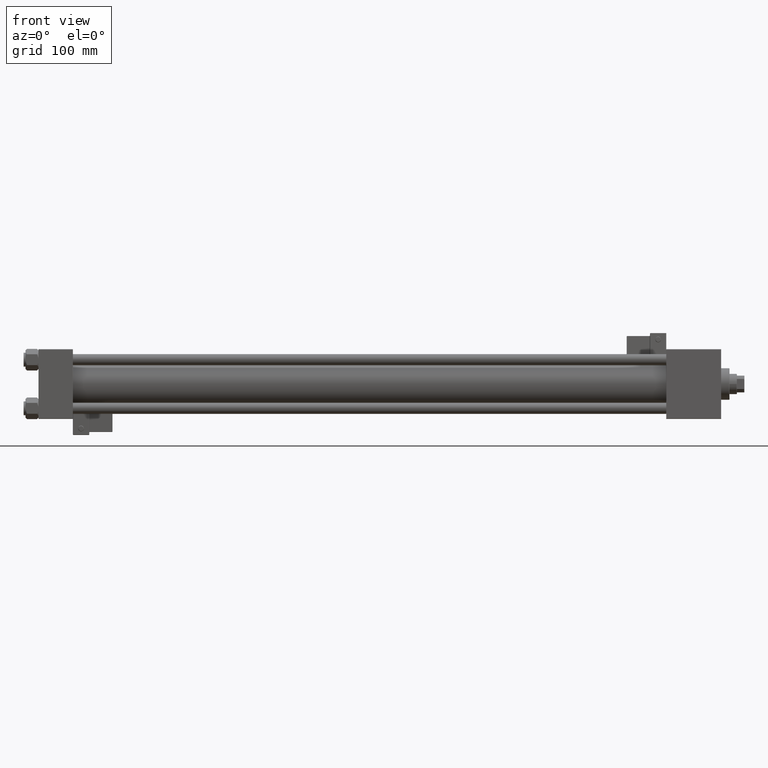
[diagram: clean part render]
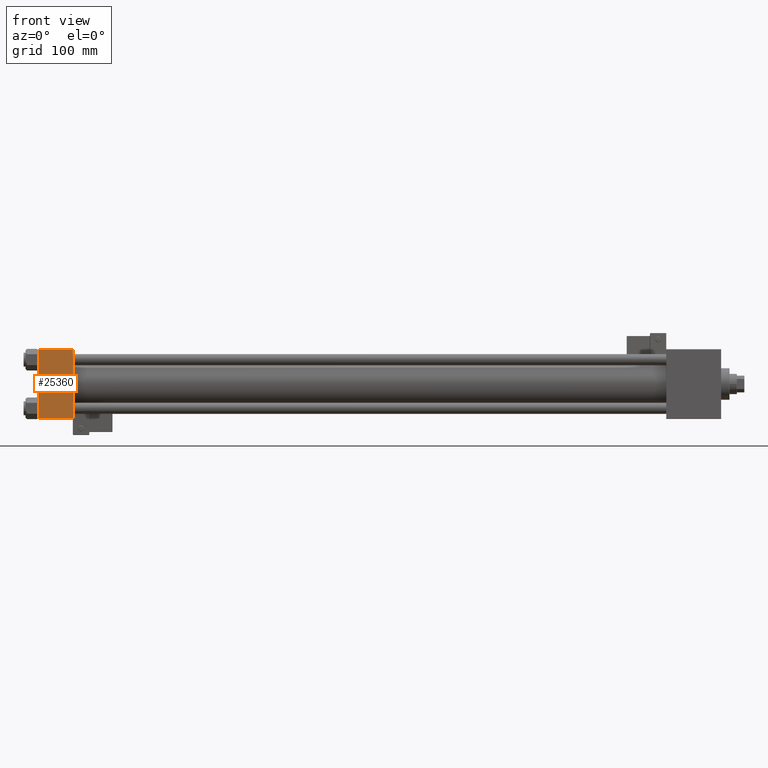
[diagram: same view with one face highlighted and labeled with its STEP entity id]
A machine part, front view. The second image highlights one B-rep face of the part: STEP entity #25360.
In plain terms, the highlighted planar face has unit normal (0, 1, 0).
Its self-contained STEP definition (entity closure, byte-faithful):
#786 = ORIENTED_EDGE ( 'NONE', *, *, #38293, .T. ) ;
#1120 = DIRECTION ( 'NONE',  ( 0.000000000000000000, -9.251858538542971581E-17, 1.000000000000000000 ) ) ;
#1976 = VECTOR ( 'NONE', #9221, 1000.000000000000000 ) ;
#2413 = AXIS2_PLACEMENT_3D ( 'NONE', #32748, #36998, #1120 ) ;
#2584 = VERTEX_POINT ( 'NONE', #24718 ) ;
#4848 = EDGE_CURVE ( 'NONE', #31885, #33990, #10446, .T. ) ;
#8275 = EDGE_LOOP ( 'NONE', ( #9616, #37351, #9694, #786 ) ) ;
#9221 = DIRECTION ( 'NONE',  ( 1.000000000000000000, 0.000000000000000000, 0.000000000000000000 ) ) ;
#9616 = ORIENTED_EDGE ( 'NONE', *, *, #26066, .T. ) ;
#9694 = ORIENTED_EDGE ( 'NONE', *, *, #4848, .F. ) ;
#10333 = DIRECTION ( 'NONE',  ( 0.000000000000000000, 9.251858538542971581E-17, -1.000000000000000000 ) ) ;
#10446 = LINE ( 'NONE', #30644, #12083 ) ;
#12083 = VECTOR ( 'NONE', #51616, 1000.000000000000000 ) ;
#12561 = CARTESIAN_POINT ( 'NONE',  ( 37.00000000000000000, -37.50000000000000711, 36.99999999999999289 ) ) ;
#13460 = LINE ( 'NONE', #45626, #1976 ) ;
#17055 = FACE_OUTER_BOUND ( 'NONE', #8275, .T. ) ;
#18033 = LINE ( 'NONE', #34256, #45740 ) ;
#24718 = CARTESIAN_POINT ( 'NONE',  ( 0.000000000000000000, -37.50000000000000711, 36.99999999999999289 ) ) ;
#25338 = CARTESIAN_POINT ( 'NONE',  ( 37.00000000000000000, -37.50000000000000711, 36.99999999999999289 ) ) ;
#25360 = ADVANCED_FACE ( 'NONE', ( #17055 ), #37263, .F. ) ;
#26066 = EDGE_CURVE ( 'NONE', #2584, #38834, #18033, .T. ) ;
#29617 = VECTOR ( 'NONE', #40754, 1000.000000000000000 ) ;
#30644 = CARTESIAN_POINT ( 'NONE',  ( 37.00000000000000000, -37.50000000000000711, 37.49999999999999289 ) ) ;
#31885 = VERTEX_POINT ( 'NONE', #12561 ) ;
#32748 = CARTESIAN_POINT ( 'NONE',  ( 37.00000000000000000, -37.50000000000000711, 37.49999999999999289 ) ) ;
#33990 = VERTEX_POINT ( 'NONE', #51619 ) ;
#34256 = CARTESIAN_POINT ( 'NONE',  ( 0.000000000000000000, -37.50000000000000711, 37.49999999999999289 ) ) ;
#36998 = DIRECTION ( 'NONE',  ( -0.000000000000000000, 1.000000000000000000, 9.251858538542971581E-17 ) ) ;
#37263 = PLANE ( 'NONE',  #2413 ) ;
#37351 = ORIENTED_EDGE ( 'NONE', *, *, #52023, .T. ) ;
#38293 = EDGE_CURVE ( 'NONE', #31885, #2584, #45262, .T. ) ;
#38834 = VERTEX_POINT ( 'NONE', #46507 ) ;
#40754 = DIRECTION ( 'NONE',  ( -1.000000000000000000, 0.000000000000000000, 0.000000000000000000 ) ) ;
#45262 = LINE ( 'NONE', #25338, #29617 ) ;
#45626 = CARTESIAN_POINT ( 'NONE',  ( 37.00000000000000000, -37.50000000000000000, -37.00000000000003553 ) ) ;
#45740 = VECTOR ( 'NONE', #10333, 1000.000000000000000 ) ;
#46507 = CARTESIAN_POINT ( 'NONE',  ( 0.000000000000000000, -37.50000000000000000, -37.00000000000003553 ) ) ;
#51616 = DIRECTION ( 'NONE',  ( 0.000000000000000000, 9.251858538542971581E-17, -1.000000000000000000 ) ) ;
#51619 = CARTESIAN_POINT ( 'NONE',  ( 37.00000000000000000, -37.50000000000000000, -37.00000000000003553 ) ) ;
#52023 = EDGE_CURVE ( 'NONE', #38834, #33990, #13460, .T. ) ;